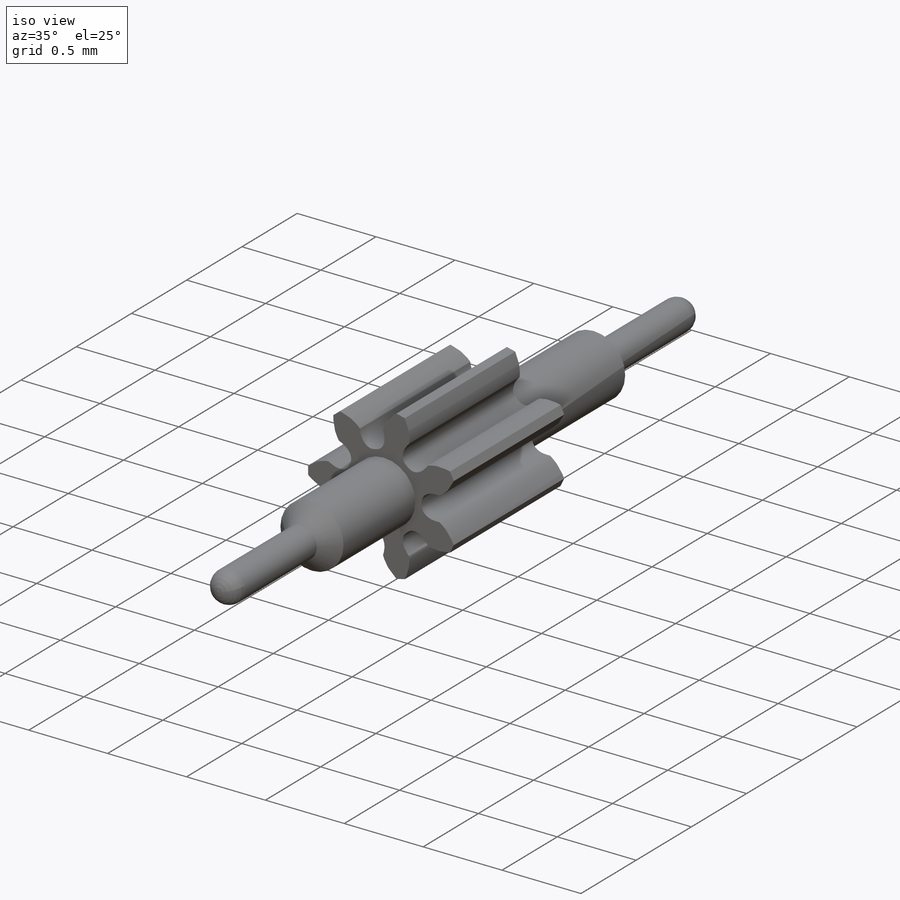
[diagram: iso view]
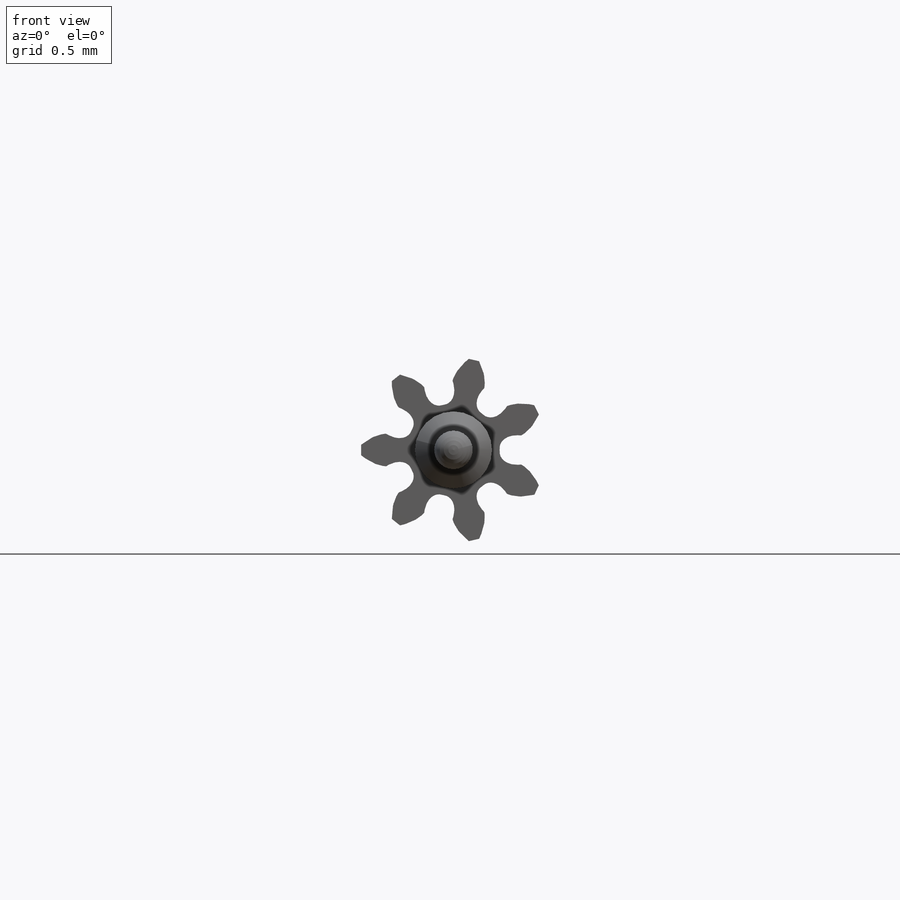
[diagram: front view]
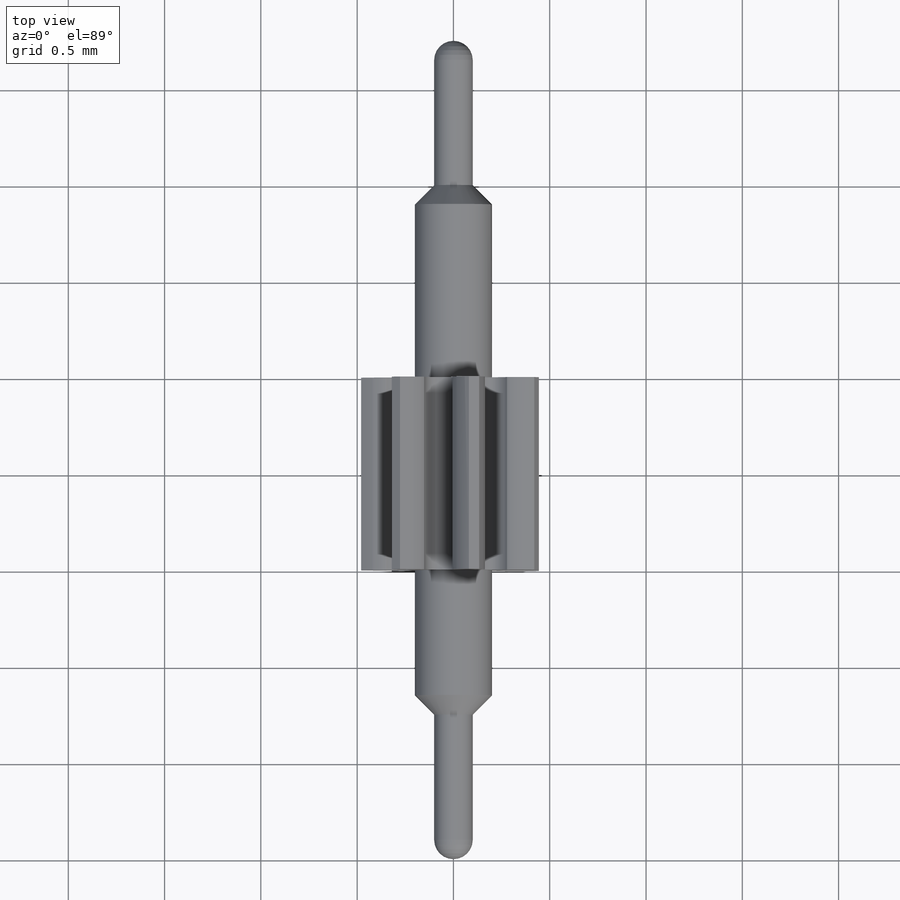
[diagram: top view]
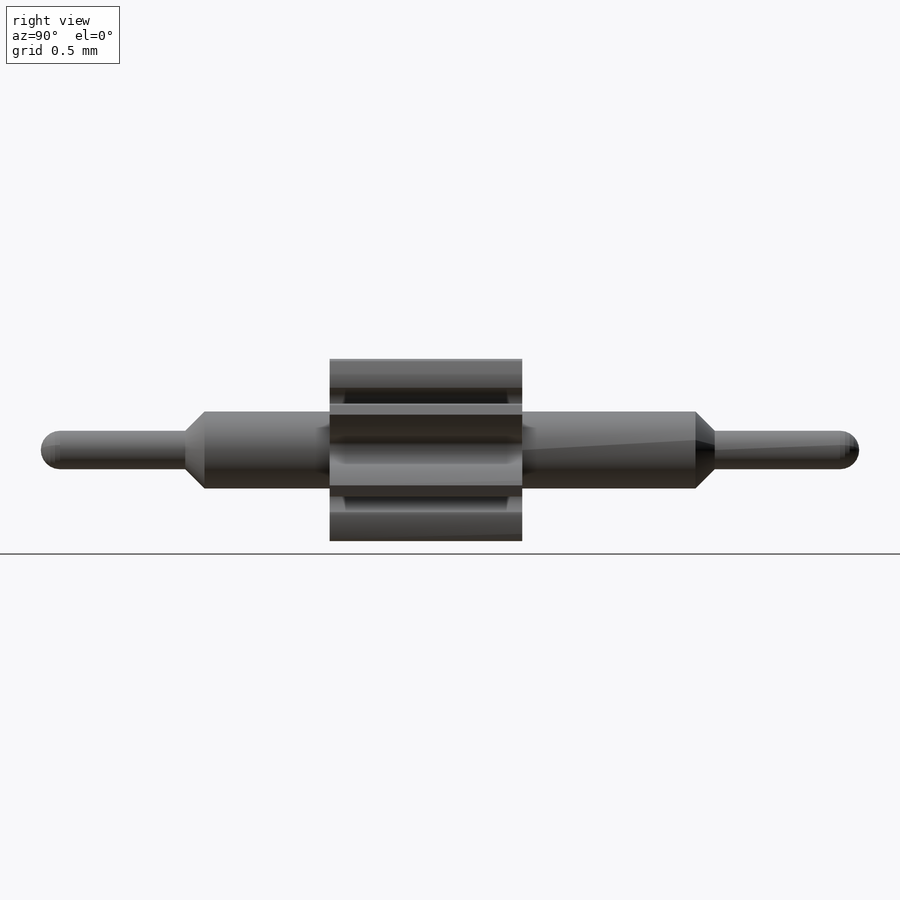
[diagram: right view]
SOLIDWORKS PART (.sldprt)
format: sldprt  version: not decoded by parser v0  size: 520,192 bytes
history: native  units: mm
features: sketch x7, extrude x4, plane x3, dome x2, material x1, revolve x1, cut_extrude x1, pattern_circular x1, chamfer x1 (+8 scaffold rows collapsed)
feature tree (29):
  scaffold x8  (default folders/planes/origin — collapsed)
  material  "Material <sin especificar>"
  plane  "Alzado"
  plane  "Planta"
  plane  "Vista lateral"
  sketch  "SketchRevolveEngranaje 7d"
  revolve  "Engranaje 7d"  Angle=360deg
  sketch  "SketchToothEngranaje 7d"
  cut_extrude  "ToothExtrudeCutEngranaje 7d"  Depth=0.5mm
  pattern_circular  "PatternEngranaje 7d"  Count=7 Angle=51.428571deg
  sketch  "AuxiliarySketchEngranaje 7d"  dims[PitchDiameter=~0.746667mm BaseDiameter=~0.701637mm FormDiameter=~0.808234mm MajorDiameter=0.96mm MinorDiameter=0.48mm]
  sketch  "Croquis1"  dims[D1=0.4mm]
  extrude  "Saliente-Extruir1"  Depth=0.75mm
  sketch  "Croquis2"  dims[D1=0.2mm]
  extrude  "Saliente-Extruir2"  Depth=0.65mm
  sketch  "Croquis3"  dims[D1=0.4mm]
  extrude  "Saliente-Extruir3"  Depth=1mm
  sketch  "Croquis4"  dims[D1=0.2mm]
  extrude  "Saliente-Extruir4"  Depth=0.65mm
  dome  "Cúpula1"
  dome  "Cúpula2"
  chamfer  "Chaflán1"  Distance=0.1mm Angle=45deg
decode coverage: 13 of 17 modeling features carry decoded parameters
note: ~ marks probable driven/reference dimensions
note: suppression state not decoded; provenance and decode notes live in map.json
